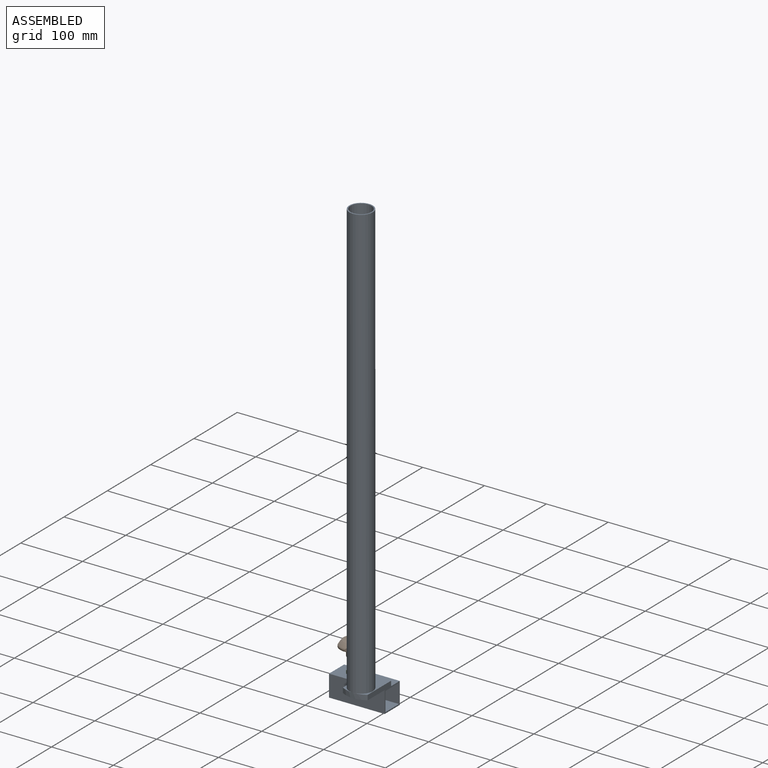
[diagram: assembled view]
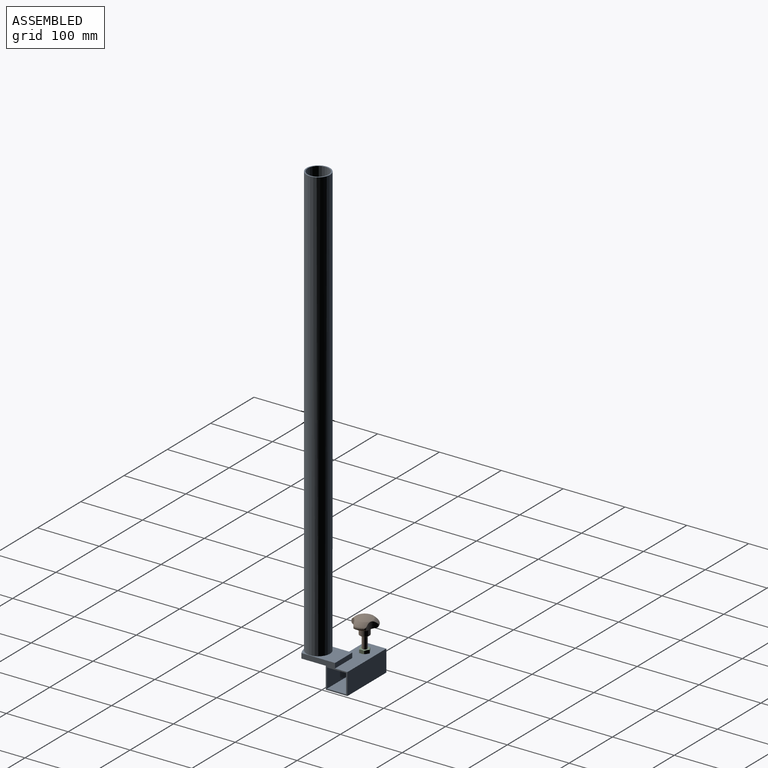
[diagram: assembled view, second angle]
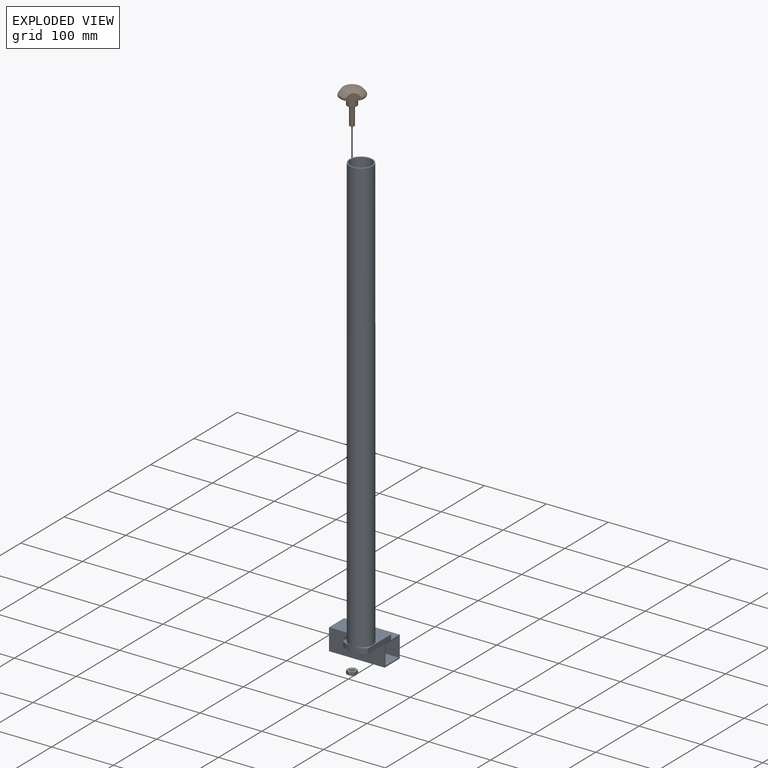
[diagram: exploded view]
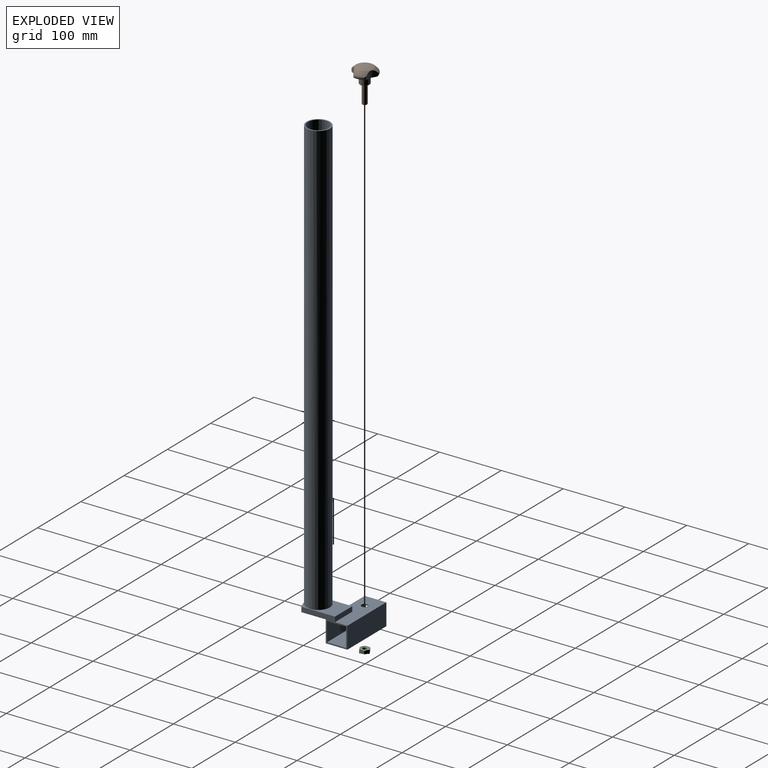
[diagram: exploded view, second angle]
ASSEMBLY  parts=3 mates=2
PART A: 27 faces, bbox 90x80x743 mm
  f0: plane 74.31x43mm, normal (1,0,0), area 698.5mm2, adj f2,f3,f4,f5,f6,f7,f8,f9
  f1: plane 35x35mm, normal (-1,0,0), area 264mm2, adj f2,f3,f4,f5,f6,f7,f8,f9
  f2: plane 90x35mm, normal (0,1,0), area 3150mm2, adj f0,f1,f4,f5
  f3: plane 90x35mm, normal (0,-1,0), area 3150mm2, adj f0,f1,f4,f5,f11
  f4: plane 90x35mm, normal (0,0,-1), area 3150mm2, adj f0,f1,f2,f3
  f5: plane 90x35mm, normal (0,0,1), area 2463.4mm2, adj f0,f1,f2,f3,f10,f12,f13
  f6: plane 90x31mm, normal (0,-1,0), area 2790mm2, adj f0,f1,f8,f9
  f7: plane 90x31mm, normal (0,1,0), area 2790mm2, adj f0,f1,f8,f9
  f8: plane 90x31mm, normal (0,0,1), area 2790mm2, adj f0,f1,f6,f7
  f9: plane 90x31mm, normal (0,0,-1), area 2703.4mm2, adj f0,f1,f6,f7,f10
  f10: cylinder r=5.25mm len=10.5mm, axis (0,0,1), area 66mm2, adj f5,f9
  f11: plane 45x40mm, normal (0,0,-1), area 1726.6mm2, adj f0,f3,f13,f14
  f12: plane 40x8mm, normal (0,1,0), area 320mm2, adj f0,f5,f13,f15
  f13: plane 54.31x8mm, normal (-1,0,0), area 434.5mm2, adj f5,f11,f12,f14,f15
  f14: cylinder r=38mm len=40mm, axis (0,0,-1), area 337mm2, adj f0,f11,f13,f15
  f15: plane 60x40mm, normal (0,0,1), area 1192.5mm2, adj f0,f12,f13,f14,f16
  f16: cylinder r=19mm len=700mm, axis (0,0,-1), area 83566.4mm2, adj f15,f17
  f17: plane 38x38mm, normal (0,0,1), area 226.2mm2, adj f16,f26
  f18: plane 51.18x6mm, normal (-1,0,0), area 226.7mm2, adj f19,f20,f21,f22,f24,f25
  f19: plane 36x2mm, normal (0,1,0), area 72mm2, adj f18,f20,f21,f23
  f20: plane 36x11mm, normal (0,0,1), area 396mm2, adj f18,f19,f22,f23
  f21: plane 45x36mm, normal (0,0,1), area 1563.8mm2, adj f18,f19,f23,f24
  f22: plane 36x6mm, normal (0,-1,0), area 216mm2, adj f18,f20,f23,f25
  f23: plane 51.18x6mm, normal (1,0,0), area 226.7mm2, adj f19,f20,f21,f22,f24,f25
  f24: cylinder r=36mm len=36mm, axis (0,0,-1), area 150.8mm2, adj f18,f21,f23,f25
  f25: plane 56x36mm, normal (0,0,-1), area 1051.8mm2, adj f18,f22,f23,f24,f26
  f26: cylinder r=17mm len=702mm, axis (0,0,-1), area 74983.5mm2, adj f17,f25
PART B: 25 faces, bbox 41.5x57x43.3 mm
  f0: revolved ~38.49x38.49mm, area 483.1mm2, adj f1,f2,f4,f5,f13,f14,f15,f16
  f1: torus R=16.54mm, axis (0,-1,0), area 139.5mm2, adj f0,f6,f13,f14,f19,f20
  f2: torus R=16.54mm, axis (0,-1,0), area 139.5mm2, adj f0,f6,f13,f15,f16,f17
  f3: sphere r=40mm, area 540.9mm2, adj f4
  f4: torus R=11.86mm, axis (0,-1,0), area 91.3mm2, adj f0,f3
  f5: torus R=16.54mm, axis (0,-1,0), area 139.5mm2, adj f0,f6,f16,f18,f20,f21
  f6: plane 33.08x31.68mm, normal (0,-1,0), area 501.6mm2, adj f1,f2,f5,f7,f13,f16,f20
  f7: torus R=9.6mm, axis (0,-1,0), area 135.5mm2, adj f6,f8
  f8: cylinder r=8mm len=16mm, axis (0,-1,0), area 556.3mm2, adj f7,f9
  f9: cone r=8mm half-angle=45deg, axis (0,1,0), area 36.6mm2, adj f8,f10
  f10: plane 14.93x14.93mm, normal (0,-1,0), area 62.1mm2, adj f9,f11
  f11: cylinder r=6mm len=12mm, axis (0,-1,0), area 11.3mm2, adj f10,f12
  f12: plane 12x12mm, normal (0,-1,0), area 62.8mm2, adj f11,f22
  f13: cylinder r=20mm len=14.78mm, axis (0,-1,0), area 167.4mm2, adj f0,f1,f2,f6,f14,f15
  f14: cylinder r=4mm len=6.67mm, axis (0,-1,0), area 15.9mm2, adj f0,f1,f13
  f15: cylinder r=4mm len=6.67mm, axis (0,-1,0), area 15.9mm2, adj f0,f2,f13
  f16: cylinder r=20mm len=17.07mm, axis (0,-1,0), area 167.4mm2, adj f0,f2,f5,f6,f17,f18
  f17: cylinder r=4mm len=6.67mm, axis (0,-1,0), area 15.9mm2, adj f0,f2,f16
  f18: cylinder r=4mm len=6.67mm, axis (0,-1,0), area 15.9mm2, adj f0,f5,f16
  f19: cylinder r=4mm len=6.67mm, axis (0,-1,0), area 15.9mm2, adj f0,f1,f20
  f20: cylinder r=20mm len=14.78mm, axis (0,-1,0), area 167.4mm2, adj f0,f1,f5,f6,f19,f21
  f21: cylinder r=4mm len=6.67mm, axis (0,-1,0), area 15.8mm2, adj f0,f5,f20
  f22: cylinder r=4mm len=29.23mm, axis (0,-1,0), area 734.7mm2, adj f12,f23
  f23: cone r=4mm half-angle=45deg, axis (0,1,0), area 24.6mm2, adj f22,f24
  f24: plane 6.47x6.47mm, normal (0,-1,0), area 32.8mm2, adj f23
PART C: 33 faces, bbox 7.2x16.8x16.8 mm
  f0: cone r=7mm half-angle=60deg, axis (1,0,0), area 1.8mm2, adj f12,f25,f26,f27
  f1: cone r=7mm half-angle=60deg, axis (1,0,0), area 4.8mm2, adj f12,f27,f29
  f2: cone r=7mm half-angle=60deg, axis (1,0,0), area 1.8mm2, adj f12,f29,f30,f31
  f3: cone r=7mm half-angle=60deg, axis (1,0,0), area 4.8mm2, adj f12,f23,f31
  f4: cone r=7mm half-angle=60deg, axis (1,0,0), area 1.8mm2, adj f12,f21,f22,f23
  f5: cone r=8.4mm half-angle=60deg, axis (-1,0,0), area 4.8mm2, adj f11,f29,f31
  f6: cone r=8.4mm half-angle=60deg, axis (-1,0,0), area 4.8mm2, adj f11,f27,f29
  f7: cone r=8.4mm half-angle=60deg, axis (-1,0,0), area 4.8mm2, adj f11,f25,f27
  f8: cone r=8.4mm half-angle=60deg, axis (-1,0,0), area 4.8mm2, adj f11,f23,f31
  f9: cone r=8.4mm half-angle=60deg, axis (-1,0,0), area 4.8mm2, adj f11,f22,f25
  f10: cone r=7mm half-angle=60deg, axis (1,0,0), area 4.8mm2, adj f12,f22,f25
  f11: plane 14x14mm, normal (1,0,0), area 67.3mm2, adj f5,f6,f7,f8,f9,f18,f20
  f12: plane 14x14mm, normal (-1,0,0), area 67.3mm2, adj f0,f1,f2,f3,f4,f10,f13
  f13: cylinder r=5.25mm len=10.5mm, axis (1,0,0), area 29.7mm2, adj f12,f14
  f14: plane 10.5x10.5mm, normal (-1,0,0), area 36.3mm2, adj f13,f15
  f15: cone r=4mm half-angle=45deg, axis (-1,0,0), area 22mm2, adj f14,f16
  f16: cylinder r=3.32mm len=6.65mm, axis (1,0,0), area 103.3mm2, adj f15,f17
  f17: cone r=3.32mm half-angle=45deg, axis (1,0,0), area 22mm2, adj f16,f19
  f18: cone r=8.4mm half-angle=60deg, axis (-1,0,0), area 4.8mm2, adj f11,f22,f23
  f19: plane 10.5x10.5mm, normal (1,0,0), area 36.3mm2, adj f17,f20
  f20: cylinder r=5.25mm len=10.5mm, axis (1,0,0), area 6.6mm2, adj f11,f19
  f21: plane 3.95x1.15mm, normal (0,1,0), area 2mm2, adj f4,f22,f23,f24
  f22: plane 7.66x6.77mm, normal (0,-0.87,0.5), area 43.5mm2, adj f4,f9,f10,f18,f21,f23,f24,f25
  f23: plane 7.66x6.77mm, normal (0,-0.87,-0.5), area 43.5mm2, adj f3,f4,f8,f18,f21,f22,f24,f31
  f24: plane 3.46x1mm, normal (-1,0,0), area 1.7mm2, adj f21,f22,f23
  f25: plane 8.76x6.77mm, normal (0,0,1), area 43.5mm2, adj f0,f7,f9,f10,f22,f26,f27,f28
  f26: plane 3.48x2.21mm, normal (0,-0.5,-0.87), area 2mm2, adj f0,f25,f27,f28
  f27: plane 7.66x6.77mm, normal (0,0.87,0.5), area 43.5mm2, adj f0,f1,f6,f7,f25,f26,f28,f29
  f28: plane 3x1.73mm, normal (-1,0,0), area 1.7mm2, adj f25,f26,f27
  f29: plane 7.66x6.77mm, normal (0,0.87,-0.5), area 43.5mm2, adj f1,f2,f5,f6,f27,f30,f31,f32
  f30: plane 3.48x2.21mm, normal (0,-0.5,0.87), area 2mm2, adj f2,f29,f31,f32
  f31: plane 8.76x6.77mm, normal (0,0,-1), area 43.5mm2, adj f2,f3,f5,f8,f23,f29,f30,f32
  f32: plane 3x1.73mm, normal (-1,0,0), area 1.7mm2, adj f29,f30,f31
PLACE A t=(-173.72,117.77,-55.87)mm fixed
PLACE B rot(axis=(0.07,-0.71,-0.71),171.5deg) t=(-148.72,135.27,-30.64)mm
PLACE C rot(axis=(0.71,0,0.71),180deg) t=(-148.72,135.27,-55.87)mm
MATE fastened C.f0 <-> A.f10  axis (0,0,-1) through (-148.72,135.27,-55.87)mm
MATE cylindrical B.f1 <-> C.f0  axis (0,0,-1) through (-148.72,135.27,-30.64)mm
